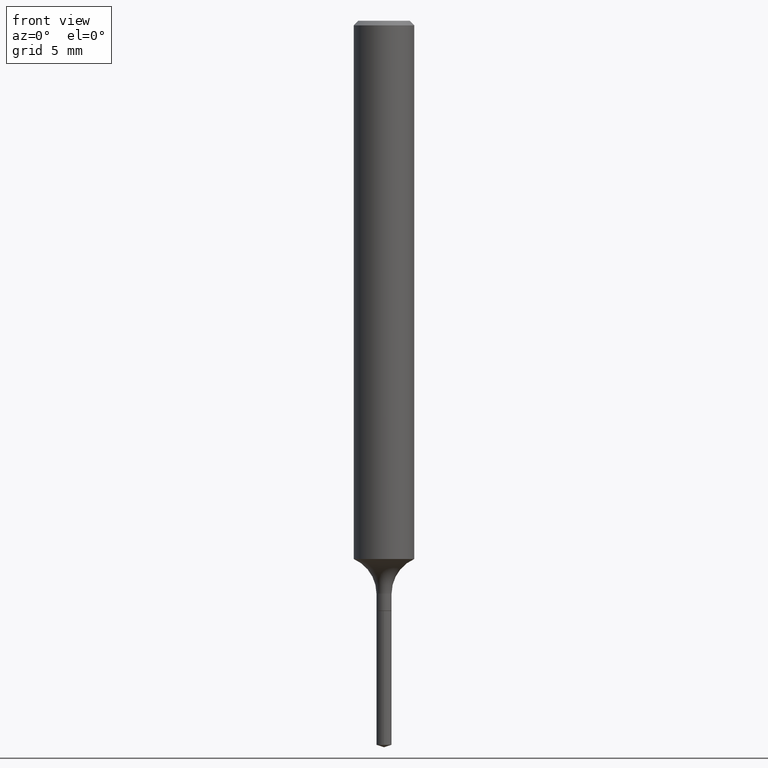
[diagram: clean part render]
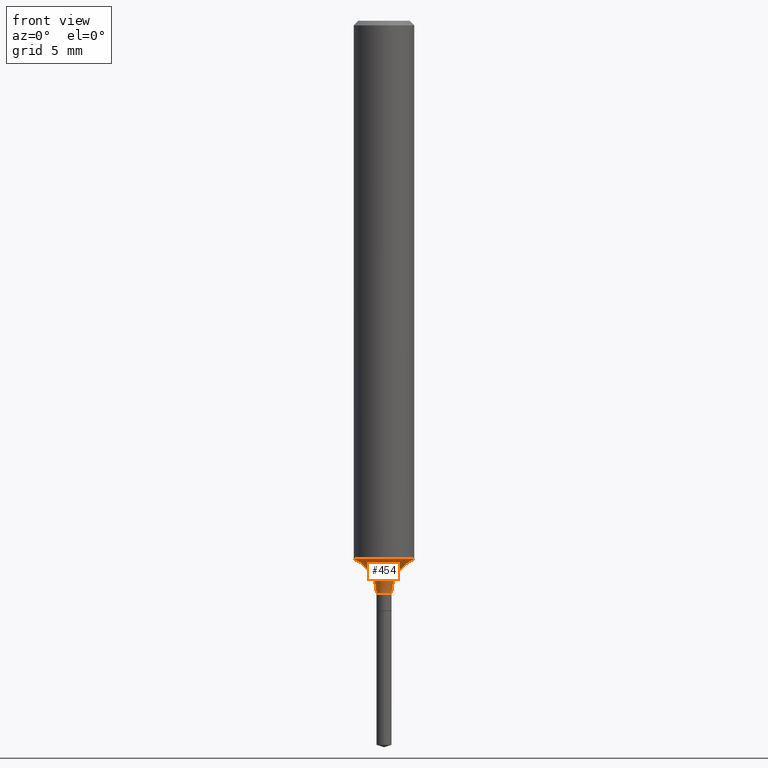
[diagram: same view with one face highlighted and labeled with its STEP entity id]
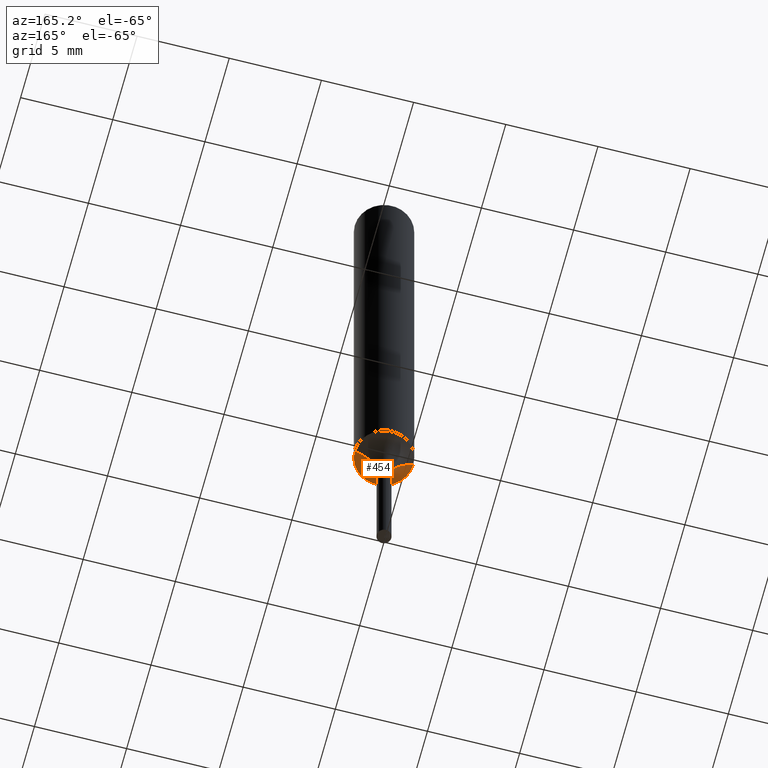
[diagram: same view with one face highlighted and labeled with its STEP entity id]
A machine part, front view. The second image highlights one B-rep face of the part: STEP entity #454.
A second angle (auxiliary view) of the same face is appended — the face is thin or edge-on in the first view.
In plain terms, the highlighted toroidal blend (fillet) surface has major radius 2.3774 mm and minor (blend) radius 1.9812 mm.
Its self-contained STEP definition (entity closure, byte-faithful):
#11 = EDGE_CURVE ( 'NONE', #188, #73, #403, .T. ) ;
#26 = CARTESIAN_POINT ( 'NONE',  ( 0.09359999999999996101, -4.783329434215106738E-15, -1.182800000000000074 ) ) ;
#34 = DIRECTION ( 'NONE',  ( 7.105427357601001859E-15, 1.000000000000000000, -3.491481338843145583E-15 ) ) ;
#65 = DIRECTION ( 'NONE',  ( -6.982962677686266711E-15, -1.000000000000000000, 3.491481338843145583E-15 ) ) ;
#71 = ORIENTED_EDGE ( 'NONE', *, *, #11, .F. ) ;
#73 = VERTEX_POINT ( 'NONE', #233 ) ;
#89 = ORIENTED_EDGE ( 'NONE', *, *, #218, .F. ) ;
#101 = CARTESIAN_POINT ( 'NONE',  ( -0.09359999999999996101, -3.464656126912219428E-15, -1.182800000000000074 ) ) ;
#104 = AXIS2_PLACEMENT_3D ( 'NONE', #101, #34, #441 ) ;
#113 = DIRECTION ( 'NONE',  ( 1.000000000000000000, -6.982962677686262766E-15, 0.000000000000000000 ) ) ;
#129 = CIRCLE ( 'NONE', #215, 0.06250000000000012490 ) ;
#161 = CARTESIAN_POINT ( 'NONE',  ( 2.892500503955779729E-29, -4.129724127583672925E-15, -1.182800000000000074 ) ) ;
#186 = VERTEX_POINT ( 'NONE', #352 ) ;
#188 = VERTEX_POINT ( 'NONE', #243 ) ;
#215 = AXIS2_PLACEMENT_3D ( 'NONE', #314, #469, #430 ) ;
#218 = EDGE_CURVE ( 'NONE', #186, #188, #129, .T. ) ;
#222 = DIRECTION ( 'NONE',  ( 1.000000000000000000, -6.982962677686264344E-15, 0.000000000000000000 ) ) ;
#233 = CARTESIAN_POINT ( 'NONE',  ( 0.01559999999999997673, -4.238658345355577903E-15, -1.182799999999999851 ) ) ;
#234 = DIRECTION ( 'NONE',  ( -2.445468806185136597E-29, 3.491481338843145583E-15, 1.000000000000000000 ) ) ;
#242 = CIRCLE ( 'NONE', #104, 0.07800000000000006928 ) ;
#243 = CARTESIAN_POINT ( 'NONE',  ( 0.06250000000000022204, -4.316407555382434945E-15, -1.111268258793735253 ) ) ;
#251 = EDGE_LOOP ( 'NONE', ( #89, #452, #437, #71 ) ) ;
#253 = CARTESIAN_POINT ( 'NONE',  ( -0.01559999999999997673, -4.080678680502620475E-15, -1.182799999999999851 ) ) ;
#257 = TOROIDAL_SURFACE ( 'NONE', #486, 0.09359999999999996101, 0.07800000000000006928 ) ;
#268 = DIRECTION ( 'NONE',  ( -2.445468806185136597E-29, 3.491481338843145583E-15, 1.000000000000000000 ) ) ;
#304 = DIRECTION ( 'NONE',  ( 1.000000000000000000, -6.982962677686265133E-15, 4.883557194083112340E-29 ) ) ;
#312 = EDGE_CURVE ( 'NONE', #186, #315, #242, .T. ) ;
#314 = CARTESIAN_POINT ( 'NONE',  ( 2.717571862183751138E-29, -3.879972388027042486E-15, -1.111268258793735253 ) ) ;
#315 = VERTEX_POINT ( 'NONE', #253 ) ;
#352 = CARTESIAN_POINT ( 'NONE',  ( -0.06250000000000022204, -3.435883178176978292E-15, -1.111268258793735253 ) ) ;
#356 = CIRCLE ( 'NONE', #447, 0.01559999999999997673 ) ;
#403 = CIRCLE ( 'NONE', #485, 0.07800000000000006928 ) ;
#430 = DIRECTION ( 'NONE',  ( 1.000000000000000000, -6.982962677686264344E-15, 0.000000000000000000 ) ) ;
#432 = EDGE_CURVE ( 'NONE', #315, #73, #356, .T. ) ;
#437 = ORIENTED_EDGE ( 'NONE', *, *, #432, .T. ) ;
#441 = DIRECTION ( 'NONE',  ( -1.000000000000000000, 7.105427357601005014E-15, 0.000000000000000000 ) ) ;
#447 = AXIS2_PLACEMENT_3D ( 'NONE', #453, #234, #113 ) ;
#452 = ORIENTED_EDGE ( 'NONE', *, *, #312, .T. ) ;
#453 = CARTESIAN_POINT ( 'NONE',  ( 2.892500503955779168E-29, -4.129724127583672136E-15, -1.182799999999999851 ) ) ;
#454 = ADVANCED_FACE ( 'NONE', ( #491 ), #257, .F. ) ;
#469 = DIRECTION ( 'NONE',  ( -2.445468806185136597E-29, 3.491481338843145583E-15, 1.000000000000000000 ) ) ;
#485 = AXIS2_PLACEMENT_3D ( 'NONE', #26, #65, #222 ) ;
#486 = AXIS2_PLACEMENT_3D ( 'NONE', #161, #268, #304 ) ;
#491 = FACE_OUTER_BOUND ( 'NONE', #251, .T. ) ;